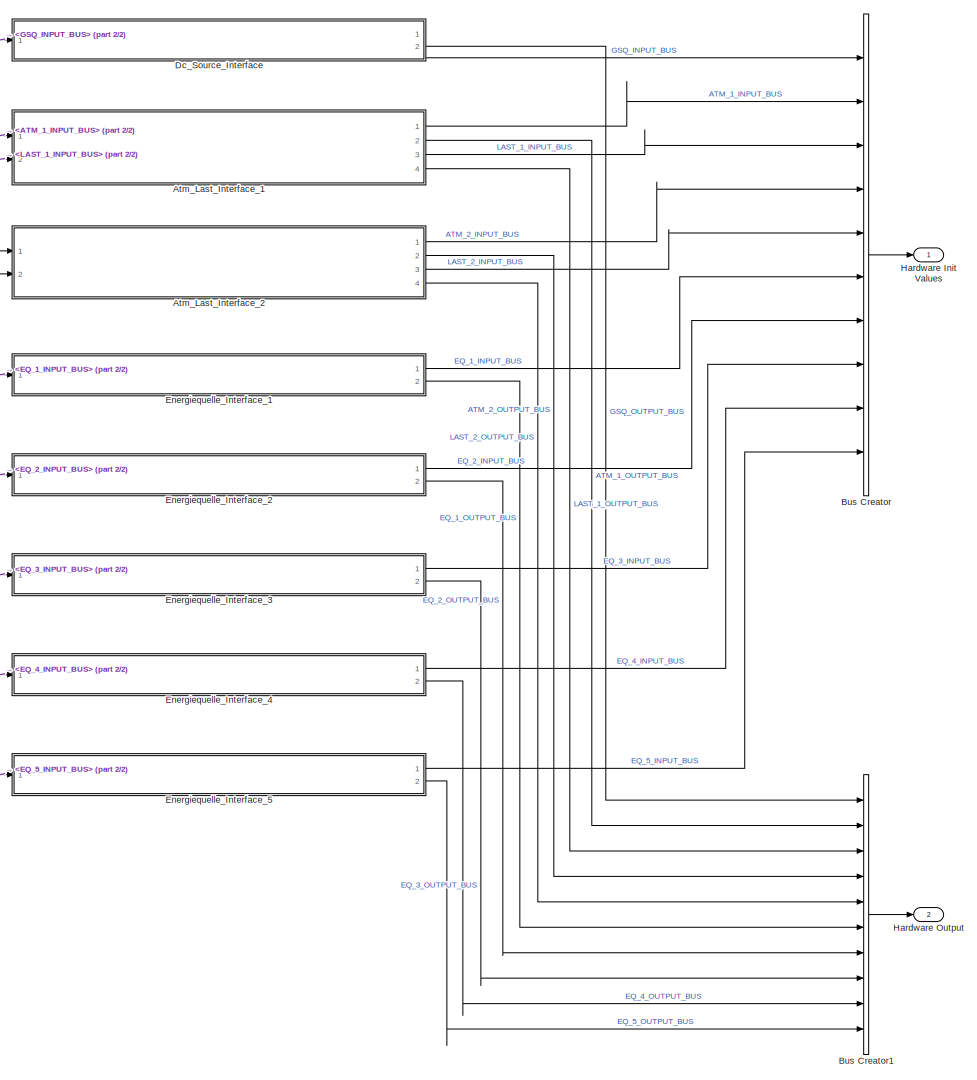
[diagram: root canvas - part 1/2, most of the canvas]
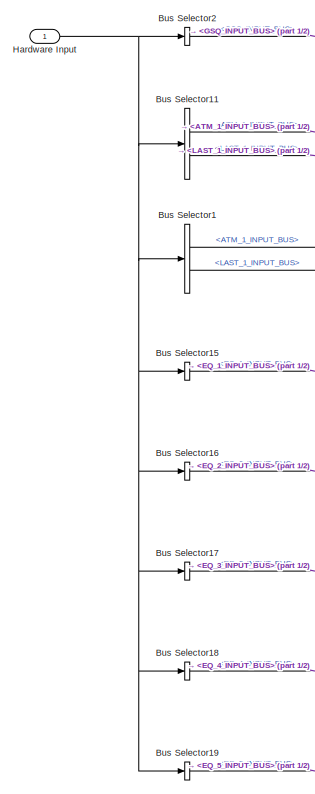
[diagram: root canvas - part 2/2, middle left region]
MODEL slx_34717616c8bd
KIND model
BLOCK [ModelReference] Atm_Last_Interface_1
  AttributesFormatString = %<ActiveVariant>
  CopyOfModelName = AtmLastNull
  DefaultDataLogging = on
  ModelNameDialog = AtmLastNull
  ModelReferenceVersion = 1.22
  Ports = [2, 4]
  Variant = on
BLOCK [ModelReference] Atm_Last_Interface_2
  AttributesFormatString = %<ActiveVariant>
  CopyOfModelName = AtmLastNull
  DefaultDataLogging = on
  ModelNameDialog = AtmLastNull
  ModelReferenceVersion = 1.22
  Ports = [2, 4]
  Variant = on
BLOCK [BusCreator] Bus Creator
  DialogController = Simulink.DDGSource_BusCreator
  DisplayOption = bar
  Inputs = 10
  Ports = [10, 1]
BLOCK [BusCreator] Bus Creator1
  DisplayOption = bar
  Inputs = 10
  OutDataTypeStr = Bus: HARDWARE_OUTPUT_BUS
  Ports = [10, 1]
BLOCK [BusSelector] Bus Selector1
  OutputSignals = ATM_1_INPUT_BUS,LAST_1_INPUT_BUS
  Ports = [1, 2]
BLOCK [BusSelector] Bus Selector11
  DialogController = Simulink.DDGSource_BusSelector
  OutputSignals = ATM_1_INPUT_BUS,LAST_1_INPUT_BUS
  Ports = [1, 2]
BLOCK [BusSelector] Bus Selector15
  OutputSignals = EQ_1_INPUT_BUS
  Ports = [1, 1]
BLOCK [BusSelector] Bus Selector16
  OutputSignals = EQ_2_INPUT_BUS
  Ports = [1, 1]
BLOCK [BusSelector] Bus Selector17
  OutputSignals = EQ_3_INPUT_BUS
  Ports = [1, 1]
BLOCK [BusSelector] Bus Selector18
  OutputSignals = EQ_4_INPUT_BUS
  Ports = [1, 1]
BLOCK [BusSelector] Bus Selector19
  OutputSignals = EQ_5_INPUT_BUS
  Ports = [1, 1]
BLOCK [BusSelector] Bus Selector2
  OutputSignals = GSQ_INPUT_BUS
  Ports = [1, 1]
BLOCK [ModelReference] Dc_Source_Interface
  AttributesFormatString = %<ActiveVariant>
  CopyOfModelName = GsqNull
  DefaultDataLogging = on
  ModelNameDialog = GsqNull
  ModelReferenceVersion = 1.28
  Ports = [1, 2]
  Variant = on
BLOCK [ModelReference] Energiequelle_Interface_1
  AttributesFormatString = %<ActiveVariant>
  CopyOfModelName = EqNull
  DefaultDataLogging = on
  ModelNameDialog = EqNull
  ModelReferenceVersion = 1.27
  Ports = [1, 2]
  Variant = on
BLOCK [ModelReference] Energiequelle_Interface_2
  AttributesFormatString = %<ActiveVariant>
  CopyOfModelName = EqNull
  DefaultDataLogging = on
  ModelNameDialog = EqNull
  ModelReferenceVersion = 1.27
  Ports = [1, 2]
  Variant = on
BLOCK [ModelReference] Energiequelle_Interface_3
  AttributesFormatString = %<ActiveVariant>
  CopyOfModelName = EqNull
  DefaultDataLogging = on
  ModelNameDialog = EqNull
  ModelReferenceVersion = 1.27
  Ports = [1, 2]
  Variant = on
BLOCK [ModelReference] Energiequelle_Interface_4
  AttributesFormatString = %<ActiveVariant>
  CopyOfModelName = EqNull
  DefaultDataLogging = on
  ModelNameDialog = EqNull
  ModelReferenceVersion = 1.27
  Ports = [1, 2]
  Variant = on
BLOCK [ModelReference] Energiequelle_Interface_5
  AttributesFormatString = %<ActiveVariant>
  CopyOfModelName = EqNull
  DefaultDataLogging = on
  ModelNameDialog = EqNull
  ModelReferenceVersion = 1.27
  Ports = [1, 2]
  Variant = on
BLOCK [Outport] Hardware Init Values
  BusOutputAsStruct = on
  IconDisplay = Port number
  OutDataTypeStr = Bus: HARDWARE_INPUT_BUS
BLOCK [Inport] Hardware Input
  BusOutputAsStruct = on
  IconDisplay = Port number
  OutDataTypeStr = Bus: HARDWARE_INPUT_BUS
BLOCK [Outport] Hardware Output
  BusOutputAsStruct = on
  IconDisplay = Port number
  OutDataTypeStr = Bus: HARDWARE_OUTPUT_BUS
  Port = 2
LINE Atm_Last_Interface_1:1 -> Bus Creator:2
LINE Atm_Last_Interface_1:2 -> Bus Creator1:2
LINE Atm_Last_Interface_1:3 -> Bus Creator:3
LINE Atm_Last_Interface_1:4 -> Bus Creator1:3
LINE Atm_Last_Interface_2:1 -> Bus Creator:4
LINE Atm_Last_Interface_2:2 -> Bus Creator1:4
LINE Atm_Last_Interface_2:3 -> Bus Creator:5
LINE Atm_Last_Interface_2:4 -> Bus Creator1:5
LINE Bus Creator1:1 -> Hardware Output:1
LINE Bus Creator:1 -> Hardware Init Values:1
LINE Bus Selector11:1 -> Atm_Last_Interface_1:1
LINE Bus Selector11:2 -> Atm_Last_Interface_1:2
LINE Bus Selector15:1 -> Energiequelle_Interface_1:1
LINE Bus Selector16:1 -> Energiequelle_Interface_2:1
LINE Bus Selector17:1 -> Energiequelle_Interface_3:1
LINE Bus Selector18:1 -> Energiequelle_Interface_4:1
LINE Bus Selector19:1 -> Energiequelle_Interface_5:1
LINE Bus Selector1:1 -> Atm_Last_Interface_2:1
LINE Bus Selector1:2 -> Atm_Last_Interface_2:2
LINE Bus Selector2:1 -> Dc_Source_Interface:1
LINE Dc_Source_Interface:1 -> Bus Creator:1
LINE Dc_Source_Interface:2 -> Bus Creator1:1
LINE Energiequelle_Interface_1:1 -> Bus Creator:6
LINE Energiequelle_Interface_1:2 -> Bus Creator1:6
LINE Energiequelle_Interface_2:1 -> Bus Creator:7
LINE Energiequelle_Interface_2:2 -> Bus Creator1:7
LINE Energiequelle_Interface_3:1 -> Bus Creator:8
LINE Energiequelle_Interface_3:2 -> Bus Creator1:8
LINE Energiequelle_Interface_4:1 -> Bus Creator:9
LINE Energiequelle_Interface_4:2 -> Bus Creator1:9
LINE Energiequelle_Interface_5:1 -> Bus Creator:10
LINE Energiequelle_Interface_5:2 -> Bus Creator1:10
NET Hardware Input:1 -> Bus Selector11:1, Bus Selector15:1, Bus Selector16:1, Bus Selector17:1, Bus Selector18:1, Bus Selector19:1, Bus Selector1:1, Bus Selector2:1
note: NET lines group one-source signal fan-out (src -> all destinations, sorted); 1:1 wires keep LINE
